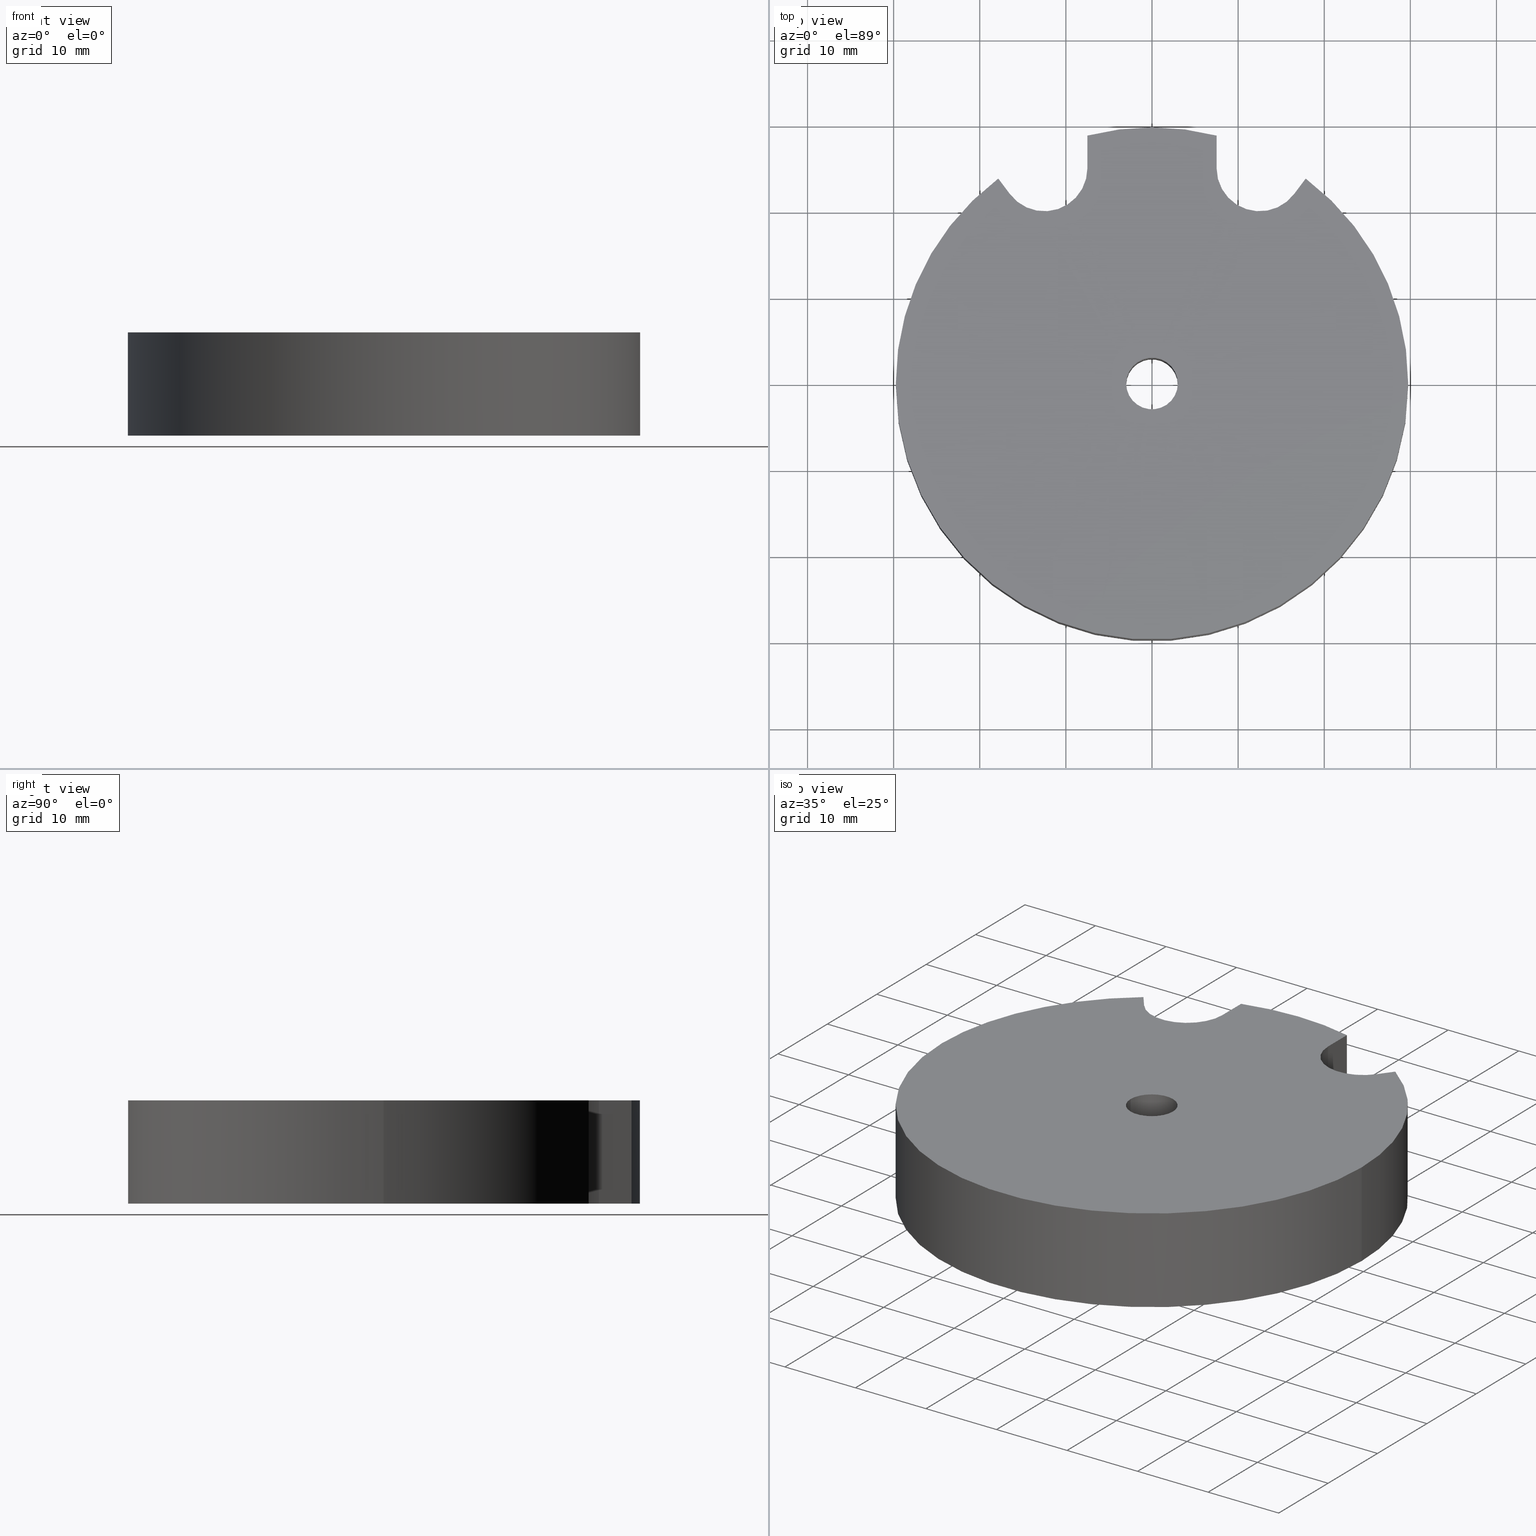
[diagram: canonical four-view strip — front | top / right | iso, engineering-drawing reading convention]
A machine part, canonical four-view strip (front | top / right | iso — engineering-drawing reading convention). The complete STEP part file that produces these views, byte-faithful:
ISO-10303-21;
HEADER;
FILE_DESCRIPTION (( 'STEP AP214' ),
    '1' );
FILE_NAME ('TripodTopRotDisk.STEP',
    '2015-06-11T08:29:34',
    ( '' ),
    ( '' ),
    'SwSTEP 2.0',
    'SolidWorks 2014',
    '' );
FILE_SCHEMA (( 'AUTOMOTIVE_DESIGN' ));
ENDSEC;

DATA;
#1 = EDGE_CURVE ( 'NONE', #295, #324, #377, .T. ) ;
#2 = CARTESIAN_POINT ( 'NONE',  ( 7.500000000000000000, 25.00000000000000000, -6.000000000000000000 ) ) ;
#3 = CARTESIAN_POINT ( 'NONE',  ( 0.0000000000000000000, 0.0000000000000000000, 6.000000000000000000 ) ) ;
#4 = EDGE_CURVE ( 'NONE', #308, #465, #358, .T. ) ;
#5 = DIRECTION ( 'NONE',  ( -1.000000000000000000, 0.0000000000000000000, 0.0000000000000000000 ) ) ;
#6 = DIRECTION ( 'NONE',  ( -0.0000000000000000000, -0.0000000000000000000, -1.000000000000000000 ) ) ;
#7 = DIRECTION ( 'NONE',  ( 1.000000000000000000, 0.0000000000000000000, 0.0000000000000000000 ) ) ;
#8 = EDGE_CURVE ( 'NONE', #142, #270, #392, .T. ) ;
#9 = PRODUCT_CONTEXT ( 'NONE', #67, 'mechanical' ) ;
#10 = DIRECTION ( 'NONE',  ( 0.0000000000000000000, 0.0000000000000000000, 1.000000000000000000 ) ) ;
#11 = ADVANCED_FACE ( 'NONE', ( #318 ), #233, .T. ) ;
#12 =( LENGTH_UNIT ( ) NAMED_UNIT ( * ) SI_UNIT ( .MILLI., .METRE. ) );
#13 = PRODUCT_DEFINITION_CONTEXT ( 'detailed design', #397, 'design' ) ;
#14 = CARTESIAN_POINT ( 'NONE',  ( 0.0000000000000000000, 0.0000000000000000000, -6.000000000000000000 ) ) ;
#15 = CARTESIAN_POINT ( 'NONE',  ( -3.000000000000000400, 0.0000000000000000000, -6.000000000000000000 ) ) ;
#16 = PLANE ( 'NONE',  #357 ) ;
#17 = FILL_AREA_STYLE_COLOUR ( '', #73 ) ;
#18 = DIRECTION ( 'NONE',  ( 0.0000000000000000000, 0.0000000000000000000, 1.000000000000000000 ) ) ;
#19 = PLANE ( 'NONE',  #361 ) ;
#20 = DIRECTION ( 'NONE',  ( -1.000000000000000000, 0.0000000000000000000, 0.0000000000000000000 ) ) ;
#21 = CARTESIAN_POINT ( 'NONE',  ( 16.50000000000000000, 22.00000000000000700, 6.000000000000000000 ) ) ;
#22 = CARTESIAN_POINT ( 'NONE',  ( 12.50000000000000000, 25.00000000000000000, -6.000000000000000000 ) ) ;
#23 = DIRECTION ( 'NONE',  ( 1.000000000000000000, 0.0000000000000000000, 0.0000000000000000000 ) ) ;
#24 = CARTESIAN_POINT ( 'NONE',  ( 16.50000000000000000, 22.00000000000000700, -6.000000000000000000 ) ) ;
#25 = ADVANCED_FACE ( 'NONE', ( #369 ), #32, .F. ) ;
#26 = DIRECTION ( 'NONE',  ( 0.0000000000000000000, 0.0000000000000000000, 1.000000000000000000 ) ) ;
#27 = EDGE_CURVE ( 'NONE', #320, #319, #103, .T. ) ;
#28 = EDGE_CURVE ( 'NONE', #314, #474, #235, .T. ) ;
#29 = EDGE_CURVE ( 'NONE', #485, #287, #231, .T. ) ;
#30 = DIRECTION ( 'NONE',  ( 1.000000000000000000, 0.0000000000000000000, 0.0000000000000000000 ) ) ;
#31 = DIRECTION ( 'NONE',  ( 1.000000000000000000, 0.0000000000000000000, 0.0000000000000000000 ) ) ;
#32 = PLANE ( 'NONE',  #378 ) ;
#33 = DIRECTION ( 'NONE',  ( -0.0000000000000000000, -0.0000000000000000000, -1.000000000000000000 ) ) ;
#34 = CARTESIAN_POINT ( 'NONE',  ( 29.75000000000000400, 3.643324227463376200E-015, 6.000000000000000000 ) ) ;
#35 = CARTESIAN_POINT ( 'NONE',  ( -3.000000000000000400, 0.0000000000000000000, 6.000000000000000000 ) ) ;
#36 = FILL_AREA_STYLE ('',( #370 ) ) ;
#37 =( NAMED_UNIT ( * ) SI_UNIT ( $, .STERADIAN. ) SOLID_ANGLE_UNIT ( ) );
#38 = DIRECTION ( 'NONE',  ( -0.7999999999999998200, -0.6000000000000003100, 0.0000000000000000000 ) ) ;
#39 = CARTESIAN_POINT ( 'NONE',  ( 0.0000000000000000000, 0.0000000000000000000, -6.000000000000000000 ) ) ;
#40 = CARTESIAN_POINT ( 'NONE',  ( 16.50000000000000000, 22.00000000000000700, 6.000000000000000000 ) ) ;
#41 = DIRECTION ( 'NONE',  ( 1.000000000000000000, 0.0000000000000000000, 0.0000000000000000000 ) ) ;
#42 = CARTESIAN_POINT ( 'NONE',  ( 17.84999999999999800, 23.80000000000000400, 6.000000000000000000 ) ) ;
#43 = CARTESIAN_POINT ( 'NONE',  ( -7.500000000000000000, 25.00000000000000000, -6.000000000000000000 ) ) ;
#44 = CIRCLE ( 'NONE', #362, 29.74999999999999600 ) ;
#45 = FACE_OUTER_BOUND ( 'NONE', #280, .T. ) ;
#46 = ADVANCED_FACE ( 'NONE', ( #102, #230 ), #19, .T. ) ;
#47 = VECTOR ( 'NONE', #200, 1000.000000000000000 ) ;
#48 = CARTESIAN_POINT ( 'NONE',  ( -29.75000000000000400, 0.0000000000000000000, -6.000000000000000000 ) ) ;
#49 = DIRECTION ( 'NONE',  ( 0.0000000000000000000, 0.0000000000000000000, 1.000000000000000000 ) ) ;
#50 = CARTESIAN_POINT ( 'NONE',  ( -7.500000000000000000, 25.00000000000000000, 6.000000000000000000 ) ) ;
#51 = CARTESIAN_POINT ( 'NONE',  ( 0.0000000000000000000, 0.0000000000000000000, 6.000000000000000000 ) ) ;
#52 = DIRECTION ( 'NONE',  ( 1.000000000000000000, 0.0000000000000000000, 0.0000000000000000000 ) ) ;
#53 = CARTESIAN_POINT ( 'NONE',  ( 17.84999999999999800, 23.80000000000000400, -6.000000000000000000 ) ) ;
#54 = DIRECTION ( 'NONE',  ( -0.0000000000000000000, -0.0000000000000000000, -1.000000000000000000 ) ) ;
#55 = CARTESIAN_POINT ( 'NONE',  ( 3.000000000000000400, 3.673940397442060400E-016, 6.000000000000000000 ) ) ;
#56 = CARTESIAN_POINT ( 'NONE',  ( -17.84999999999999800, 23.80000000000000400, 6.000000000000000000 ) ) ;
#57 = UNCERTAINTY_MEASURE_WITH_UNIT (LENGTH_MEASURE( 1.000000000000000100E-005 ), #12, 'distance_accuracy_value', 'NONE');
#58 = DIRECTION ( 'NONE',  ( -0.0000000000000000000, -0.0000000000000000000, -1.000000000000000000 ) ) ;
#59 = DIRECTION ( 'NONE',  ( -0.0000000000000000000, -0.0000000000000000000, -1.000000000000000000 ) ) ;
#60 = DIRECTION ( 'NONE',  ( 0.0000000000000000000, 0.0000000000000000000, 1.000000000000000000 ) ) ;
#61 = EDGE_CURVE ( 'NONE', #328, #323, #44, .T. ) ;
#62 = SHAPE_DEFINITION_REPRESENTATION ( #422, #276 ) ;
#63 = DIRECTION ( 'NONE',  ( 0.0000000000000000000, 0.0000000000000000000, 1.000000000000000000 ) ) ;
#64 = CARTESIAN_POINT ( 'NONE',  ( -17.84999999999999800, 23.80000000000000400, 6.000000000000000000 ) ) ;
#65 = CARTESIAN_POINT ( 'NONE',  ( 0.0000000000000000000, 0.0000000000000000000, 6.000000000000000000 ) ) ;
#66 = DIRECTION ( 'NONE',  ( -0.0000000000000000000, -0.0000000000000000000, -1.000000000000000000 ) ) ;
#67 = APPLICATION_CONTEXT ( 'automotive_design' ) ;
#68 = CARTESIAN_POINT ( 'NONE',  ( -17.84999999999999800, 23.80000000000000400, 6.000000000000000000 ) ) ;
#69 = PRESENTATION_STYLE_ASSIGNMENT (( #277 ) ) ;
#70 = CARTESIAN_POINT ( 'NONE',  ( -16.49999999999999600, 22.00000000000000700, 6.000000000000000000 ) ) ;
#71 = ADVANCED_FACE ( 'NONE', ( #45 ), #16, .F. ) ;
#72 = SURFACE_STYLE_FILL_AREA ( #406 ) ;
#73 = COLOUR_RGB ( '',1.000000000000000000, 1.000000000000000000, 1.000000000000000000 ) ;
#74 = UNCERTAINTY_MEASURE_WITH_UNIT (LENGTH_MEASURE( 1.000000000000000100E-005 ), #387, 'distance_accuracy_value', 'NONE');
#75 = EDGE_CURVE ( 'NONE', #293, #295, #224, .T. ) ;
#76 = VECTOR ( 'NONE', #333, 1000.000000000000000 ) ;
#77 = CYLINDRICAL_SURFACE ( 'NONE', #187, 29.75000000000000400 ) ;
#78 = FACE_OUTER_BOUND ( 'NONE', #453, .T. ) ;
#79 = DIRECTION ( 'NONE',  ( -1.000000000000000000, 0.0000000000000000000, 0.0000000000000000000 ) ) ;
#80 = ADVANCED_FACE ( 'NONE', ( #222 ), #220, .F. ) ;
#81 = LINE ( 'NONE', #56, #76 ) ;
#82 = DIRECTION ( 'NONE',  ( -1.000000000000000000, 0.0000000000000000000, 0.0000000000000000000 ) ) ;
#83 = VECTOR ( 'NONE', #338, 1000.000000000000000 ) ;
#84 = CARTESIAN_POINT ( 'NONE',  ( 0.0000000000000000000, 0.0000000000000000000, 6.000000000000000000 ) ) ;
#85 = VECTOR ( 'NONE', #285, 1000.000000000000000 ) ;
#86 = CARTESIAN_POINT ( 'NONE',  ( 12.50000000000000000, 25.00000000000000000, 6.000000000000000000 ) ) ;
#87 = DIRECTION ( 'NONE',  ( 1.000000000000000000, 0.0000000000000000000, 0.0000000000000000000 ) ) ;
#88 = LINE ( 'NONE', #454, #85 ) ;
#89 = DIRECTION ( 'NONE',  ( -0.0000000000000000000, -0.0000000000000000000, -1.000000000000000000 ) ) ;
#90 = LINE ( 'NONE', #50, #83 ) ;
#91 = PLANE ( 'NONE',  #290 ) ;
#92 = CARTESIAN_POINT ( 'NONE',  ( 0.0000000000000000000, 0.0000000000000000000, -6.000000000000000000 ) ) ;
#93 = CIRCLE ( 'NONE', #217, 29.74999999999999600 ) ;
#94 = CYLINDRICAL_SURFACE ( 'NONE', #212, 29.75000000000000400 ) ;
#95 = EDGE_CURVE ( 'NONE', #330, #295, #223, .T. ) ;
#96 = CIRCLE ( 'NONE', #194, 4.999999999999997300 ) ;
#97 = DIRECTION ( 'NONE',  ( -0.0000000000000000000, -1.000000000000000000, -0.0000000000000000000 ) ) ;
#98 = VECTOR ( 'NONE', #383, 1000.000000000000000 ) ;
#99 = EDGE_CURVE ( 'NONE', #324, #328, #226, .T. ) ;
#100 = LINE ( 'NONE', #281, #98 ) ;
#101 = FACE_OUTER_BOUND ( 'NONE', #337, .T. ) ;
#102 = FACE_OUTER_BOUND ( 'NONE', #165, .T. ) ;
#103 = CIRCLE ( 'NONE', #390, 3.000000000000000400 ) ;
#104 = DIRECTION ( 'NONE',  ( -0.6000000000000002000, 0.7999999999999998200, -0.0000000000000000000 ) ) ;
#105 = VECTOR ( 'NONE', #141, 1000.000000000000000 ) ;
#106 = PRODUCT_RELATED_PRODUCT_CATEGORY ( 'part', '', ( #249 ) ) ;
#107 = CARTESIAN_POINT ( 'NONE',  ( 0.0000000000000000000, 0.0000000000000000000, 6.000000000000000000 ) ) ;
#108 = ADVANCED_FACE ( 'NONE', ( #221, #219 ), #254, .F. ) ;
#109 = DIRECTION ( 'NONE',  ( -0.0000000000000000000, -0.0000000000000000000, -1.000000000000000000 ) ) ;
#110 = ORIENTED_EDGE ( 'NONE', *, *, #229, .T. ) ;
#111 = ORIENTED_EDGE ( 'NONE', *, *, #61, .T. ) ;
#112 = PRODUCT_DEFINITION_FORMATION_WITH_SPECIFIED_SOURCE ( 'ANY', '', #249, .NOT_KNOWN. ) ;
#113 = ORIENTED_EDGE ( 'NONE', *, *, #426, .F. ) ;
#114 = ORIENTED_EDGE ( 'NONE', *, *, #460, .T. ) ;
#115 = VECTOR ( 'NONE', #58, 1000.000000000000000 ) ;
#116 = CIRCLE ( 'NONE', #225, 29.75000000000000400 ) ;
#117 = VECTOR ( 'NONE', #189, 1000.000000000000000 ) ;
#118 = LINE ( 'NONE', #444, #117 ) ;
#119 = CIRCLE ( 'NONE', #227, 29.75000000000000400 ) ;
#120 = PRODUCT_DEFINITION ( 'UNKNOWN', '', #112, #13 ) ;
#121 = CIRCLE ( 'NONE', #213, 4.999999999999997300 ) ;
#122 = AXIS2_PLACEMENT_3D ( 'NONE', #433, #346, #479 ) ;
#123 = VECTOR ( 'NONE', #240, 1000.000000000000000 ) ;
#124 = LINE ( 'NONE', #476, #123 ) ;
#125 = VECTOR ( 'NONE', #54, 1000.000000000000000 ) ;
#126 = LINE ( 'NONE', #248, #158 ) ;
#127 = LINE ( 'NONE', #446, #125 ) ;
#128 = EDGE_CURVE ( 'NONE', #270, #314, #215, .T. ) ;
#129 = CIRCLE ( 'NONE', #237, 29.75000000000000400 ) ;
#130 = CYLINDRICAL_SURFACE ( 'NONE', #234, 3.000000000000000400 ) ;
#131 = LINE ( 'NONE', #156, #115 ) ;
#132 = LINE ( 'NONE', #34, #138 ) ;
#133 = DIRECTION ( 'NONE',  ( -0.0000000000000000000, -0.0000000000000000000, -1.000000000000000000 ) ) ;
#134 = CIRCLE ( 'NONE', #243, 29.75000000000000400 ) ;
#135 = ORIENTED_EDGE ( 'NONE', *, *, #468, .T. ) ;
#136 = FACE_OUTER_BOUND ( 'NONE', #291, .T. ) ;
#137 = DIRECTION ( 'NONE',  ( 0.0000000000000000000, 0.0000000000000000000, 1.000000000000000000 ) ) ;
#138 = VECTOR ( 'NONE', #162, 1000.000000000000000 ) ;
#139 =( GEOMETRIC_REPRESENTATION_CONTEXT ( 3 ) GLOBAL_UNCERTAINTY_ASSIGNED_CONTEXT ( ( #393 ) ) GLOBAL_UNIT_ASSIGNED_CONTEXT ( ( #279, #379, #398 ) ) REPRESENTATION_CONTEXT ( 'NONE', 'WORKASPACE' ) );
#140 = ORIENTED_EDGE ( 'NONE', *, *, #407, .F. ) ;
#141 = DIRECTION ( 'NONE',  ( -0.0000000000000000000, -0.0000000000000000000, -1.000000000000000000 ) ) ;
#142 = VERTEX_POINT ( 'NONE', #70 ) ;
#143 = CARTESIAN_POINT ( 'NONE',  ( 12.50000000000000000, 25.00000000000000000, 6.000000000000000000 ) ) ;
#144 = EDGE_CURVE ( 'NONE', #465, #270, #210, .T. ) ;
#145 = DIRECTION ( 'NONE',  ( -0.0000000000000000000, -0.0000000000000000000, -1.000000000000000000 ) ) ;
#146 = CARTESIAN_POINT ( 'NONE',  ( -12.50000000000000000, 25.00000000000000000, 6.000000000000000000 ) ) ;
#147 = VECTOR ( 'NONE', #66, 1000.000000000000000 ) ;
#148 = ORIENTED_EDGE ( 'NONE', *, *, #464, .F. ) ;
#149 = CARTESIAN_POINT ( 'NONE',  ( -17.84999999999999800, 23.80000000000000400, -6.000000000000000000 ) ) ;
#150 = DIRECTION ( 'NONE',  ( 0.0000000000000000000, 0.0000000000000000000, 1.000000000000000000 ) ) ;
#151 = EDGE_LOOP ( 'NONE', ( #384, #262, #265, #481, #431, #214, #467, #300, #480, #427 ) ) ;
#152 = CARTESIAN_POINT ( 'NONE',  ( 0.0000000000000000000, 0.0000000000000000000, -6.000000000000000000 ) ) ;
#153 = CARTESIAN_POINT ( 'NONE',  ( 0.0000000000000000000, 0.0000000000000000000, 6.000000000000000000 ) ) ;
#154 = DIRECTION ( 'NONE',  ( 1.000000000000000000, 0.0000000000000000000, 0.0000000000000000000 ) ) ;
#155 = CIRCLE ( 'NONE', #245, 29.75000000000000400 ) ;
#156 = CARTESIAN_POINT ( 'NONE',  ( -7.500000000000000000, 28.78910384155782900, 6.000000000000000000 ) ) ;
#157 = LINE ( 'NONE', #55, #147 ) ;
#158 = VECTOR ( 'NONE', #59, 1000.000000000000000 ) ;
#159 = FACE_OUTER_BOUND ( 'NONE', #343, .T. ) ;
#160 = LINE ( 'NONE', #68, #186 ) ;
#161 = DIRECTION ( 'NONE',  ( -0.0000000000000000000, -0.0000000000000000000, -1.000000000000000000 ) ) ;
#162 = DIRECTION ( 'NONE',  ( -0.0000000000000000000, -0.0000000000000000000, -1.000000000000000000 ) ) ;
#163 = CIRCLE ( 'NONE', #292, 3.000000000000000400 ) ;
#164 = SURFACE_STYLE_USAGE ( .BOTH. , #375 ) ;
#165 = EDGE_LOOP ( 'NONE', ( #114, #252, #289, #335, #316, #408, #135, #317, #309, #283 ) ) ;
#166 = CARTESIAN_POINT ( 'NONE',  ( 3.000000000000000400, 3.673940397442060400E-016, 6.000000000000000000 ) ) ;
#167 = ORIENTED_EDGE ( 'NONE', *, *, #460, .F. ) ;
#168 = MECHANICAL_DESIGN_GEOMETRIC_PRESENTATION_REPRESENTATION (  '', ( #175 ), #139 ) ;
#169 = FACE_OUTER_BOUND ( 'NONE', #445, .T. ) ;
#170 = CYLINDRICAL_SURFACE ( 'NONE', #247, 29.74999999999999600 ) ;
#171 = PRESENTATION_LAYER_ASSIGNMENT (  '', '', ( #175 ) ) ;
#172 = CARTESIAN_POINT ( 'NONE',  ( 0.0000000000000000000, 0.0000000000000000000, -6.000000000000000000 ) ) ;
#173 = ORIENTED_EDGE ( 'NONE', *, *, #144, .T. ) ;
#174 = ADVANCED_FACE ( 'NONE', ( #203 ), #196, .F. ) ;
#175 = STYLED_ITEM ( 'NONE', ( #69 ), #276 ) ;
#176 = ORIENTED_EDGE ( 'NONE', *, *, #424, .F. ) ;
#177 = ORIENTED_EDGE ( 'NONE', *, *, #409, .T. ) ;
#178 = CYLINDRICAL_SURFACE ( 'NONE', #278, 4.999999999999997300 ) ;
#179 = ORIENTED_EDGE ( 'NONE', *, *, #8, .T. ) ;
#180 = ORIENTED_EDGE ( 'NONE', *, *, #409, .F. ) ;
#181 = ORIENTED_EDGE ( 'NONE', *, *, #470, .F. ) ;
#182 = ORIENTED_EDGE ( 'NONE', *, *, #28, .T. ) ;
#183 = FACE_OUTER_BOUND ( 'NONE', #296, .T. ) ;
#184 = LINE ( 'NONE', #207, #105 ) ;
#185 = CIRCLE ( 'NONE', #266, 3.000000000000000400 ) ;
#186 = VECTOR ( 'NONE', #459, 1000.000000000000000 ) ;
#187 = AXIS2_PLACEMENT_3D ( 'NONE', #153, #6, #251 ) ;
#188 = FACE_OUTER_BOUND ( 'NONE', #322, .T. ) ;
#189 = DIRECTION ( 'NONE',  ( -0.0000000000000000000, -0.0000000000000000000, -1.000000000000000000 ) ) ;
#190 = DIRECTION ( 'NONE',  ( -0.0000000000000000000, -0.0000000000000000000, -1.000000000000000000 ) ) ;
#191 = CARTESIAN_POINT ( 'NONE',  ( 0.0000000000000000000, 0.0000000000000000000, 6.000000000000000000 ) ) ;
#192 = CARTESIAN_POINT ( 'NONE',  ( -16.49999999999999600, 22.00000000000000700, -6.000000000000000000 ) ) ;
#193 = COLOUR_RGB ( '',1.000000000000000000, 1.000000000000000000, 1.000000000000000000 ) ;
#194 = AXIS2_PLACEMENT_3D ( 'NONE', #146, #190, #52 ) ;
#195 = CARTESIAN_POINT ( 'NONE',  ( 0.0000000000000000000, 0.0000000000000000000, 6.000000000000000000 ) ) ;
#196 = CYLINDRICAL_SURFACE ( 'NONE', #321, 3.000000000000000400 ) ;
#197 =( GEOMETRIC_REPRESENTATION_CONTEXT ( 3 ) GLOBAL_UNCERTAINTY_ASSIGNED_CONTEXT ( ( #57 ) ) GLOBAL_UNIT_ASSIGNED_CONTEXT ( ( #12, #232, #376 ) ) REPRESENTATION_CONTEXT ( 'NONE', 'WORKASPACE' ) );
#198 = SURFACE_STYLE_FILL_AREA ( #36 ) ;
#199 = CARTESIAN_POINT ( 'NONE',  ( 7.500000000000000000, 25.00000000000000000, 6.000000000000000000 ) ) ;
#200 = DIRECTION ( 'NONE',  ( -0.6000000000000002000, -0.7999999999999998200, 0.0000000000000000000 ) ) ;
#201 = LINE ( 'NONE', #43, #206 ) ;
#202 = APPLICATION_PROTOCOL_DEFINITION ( 'draft international standard', 'automotive_design', 1998, #67 ) ;
#203 = FACE_OUTER_BOUND ( 'NONE', #209, .T. ) ;
#204 = DIRECTION ( 'NONE',  ( 0.0000000000000000000, 0.0000000000000000000, 1.000000000000000000 ) ) ;
#205 = DIRECTION ( 'NONE',  ( 0.0000000000000000000, 0.0000000000000000000, 1.000000000000000000 ) ) ;
#206 = VECTOR ( 'NONE', #97, 1000.000000000000000 ) ;
#207 = CARTESIAN_POINT ( 'NONE',  ( -3.000000000000000400, 0.0000000000000000000, 6.000000000000000000 ) ) ;
#208 = PRESENTATION_STYLE_ASSIGNMENT (( #164 ) ) ;
#209 = EDGE_LOOP ( 'NONE', ( #180, #469, #364, #253 ) ) ;
#210 = CIRCLE ( 'NONE', #359, 4.999999999999997300 ) ;
#211 = CARTESIAN_POINT ( 'NONE',  ( -7.500000000000000000, 28.78910384155782900, 6.000000000000000000 ) ) ;
#212 = AXIS2_PLACEMENT_3D ( 'NONE', #471, #33, #344 ) ;
#213 = AXIS2_PLACEMENT_3D ( 'NONE', #143, #236, #472 ) ;
#214 = ORIENTED_EDGE ( 'NONE', *, *, #99, .F. ) ;
#215 = LINE ( 'NONE', #149, #216 ) ;
#216 = VECTOR ( 'NONE', #104, 1000.000000000000000 ) ;
#217 = AXIS2_PLACEMENT_3D ( 'NONE', #3, #205, #30 ) ;
#218 = VECTOR ( 'NONE', #250, 1000.000000000000000 ) ;
#219 = FACE_BOUND ( 'NONE', #349, .T. ) ;
#220 = CYLINDRICAL_SURFACE ( 'NONE', #334, 4.999999999999997300 ) ;
#221 = FACE_OUTER_BOUND ( 'NONE', #151, .T. ) ;
#222 = FACE_OUTER_BOUND ( 'NONE', #273, .T. ) ;
#223 = LINE ( 'NONE', #400, #47 ) ;
#224 = LINE ( 'NONE', #40, #228 ) ;
#225 = AXIS2_PLACEMENT_3D ( 'NONE', #403, #150, #87 ) ;
#226 = LINE ( 'NONE', #2, #218 ) ;
#227 = AXIS2_PLACEMENT_3D ( 'NONE', #39, #18, #23 ) ;
#228 = VECTOR ( 'NONE', #161, 1000.000000000000000 ) ;
#229 = EDGE_CURVE ( 'NONE', #323, #465, #201, .T. ) ;
#230 = FACE_BOUND ( 'NONE', #416, .T. ) ;
#231 = CIRCLE ( 'NONE', #363, 3.000000000000000400 ) ;
#232 =( NAMED_UNIT ( * ) PLANE_ANGLE_UNIT ( ) SI_UNIT ( $, .RADIAN. ) );
#233 = CYLINDRICAL_SURFACE ( 'NONE', #380, 29.75000000000000400 ) ;
#234 = AXIS2_PLACEMENT_3D ( 'NONE', #410, #342, #20 ) ;
#235 = CIRCLE ( 'NONE', #373, 29.75000000000000400 ) ;
#236 = DIRECTION ( 'NONE',  ( -0.0000000000000000000, -0.0000000000000000000, -1.000000000000000000 ) ) ;
#237 = AXIS2_PLACEMENT_3D ( 'NONE', #92, #352, #368 ) ;
#238 = VECTOR ( 'NONE', #89, 1000.000000000000000 ) ;
#239 = CARTESIAN_POINT ( 'NONE',  ( 17.84999999999999800, 23.80000000000000400, 6.000000000000000000 ) ) ;
#240 = DIRECTION ( 'NONE',  ( -0.0000000000000000000, -0.0000000000000000000, -1.000000000000000000 ) ) ;
#241 = CARTESIAN_POINT ( 'NONE',  ( -12.50000000000000000, 25.00000000000000000, -6.000000000000000000 ) ) ;
#242 = DIRECTION ( 'NONE',  ( 1.000000000000000000, 0.0000000000000000000, 0.0000000000000000000 ) ) ;
#243 = AXIS2_PLACEMENT_3D ( 'NONE', #336, #49, #242 ) ;
#244 = CARTESIAN_POINT ( 'NONE',  ( -16.49999999999999600, 22.00000000000000700, 6.000000000000000000 ) ) ;
#245 = AXIS2_PLACEMENT_3D ( 'NONE', #191, #60, #449 ) ;
#246 = ORIENTED_EDGE ( 'NONE', *, *, #407, .T. ) ;
#247 = AXIS2_PLACEMENT_3D ( 'NONE', #443, #109, #5 ) ;
#248 = CARTESIAN_POINT ( 'NONE',  ( 7.500000000000000000, 25.00000000000000000, 6.000000000000000000 ) ) ;
#249 = PRODUCT ( 'TripodTopRotDisk', 'TripodTopRotDisk', '', ( #9 ) ) ;
#250 = DIRECTION ( 'NONE',  ( 0.0000000000000000000, 1.000000000000000000, 0.0000000000000000000 ) ) ;
#251 = DIRECTION ( 'NONE',  ( -1.000000000000000000, 0.0000000000000000000, 0.0000000000000000000 ) ) ;
#252 = ORIENTED_EDGE ( 'NONE', *, *, #430, .T. ) ;
#253 = ORIENTED_EDGE ( 'NONE', *, *, #27, .F. ) ;
#254 = PLANE ( 'NONE',  #331 ) ;
#255 = ORIENTED_EDGE ( 'NONE', *, *, #466, .F. ) ;
#256 = ORIENTED_EDGE ( 'NONE', *, *, #128, .T. ) ;
#257 = DIRECTION ( 'NONE',  ( 0.0000000000000000000, 0.0000000000000000000, 1.000000000000000000 ) ) ;
#258 = MANIFOLD_SOLID_BREP ( 'Boss-Extrude1', #306 ) ;
#259 = ORIENTED_EDGE ( 'NONE', *, *, #468, .F. ) ;
#260 = DIRECTION ( 'NONE',  ( 0.0000000000000000000, 0.0000000000000000000, 1.000000000000000000 ) ) ;
#261 = ORIENTED_EDGE ( 'NONE', *, *, #27, .T. ) ;
#262 = ORIENTED_EDGE ( 'NONE', *, *, #128, .F. ) ;
#263 = ADVANCED_FACE ( 'NONE', ( #188 ), #91, .F. ) ;
#264 = ORIENTED_EDGE ( 'NONE', *, *, #399, .T. ) ;
#265 = ORIENTED_EDGE ( 'NONE', *, *, #144, .F. ) ;
#266 = AXIS2_PLACEMENT_3D ( 'NONE', #172, #260, #448 ) ;
#267 = ORIENTED_EDGE ( 'NONE', *, *, #99, .T. ) ;
#268 = ORIENTED_EDGE ( 'NONE', *, *, #95, .T. ) ;
#269 = ORIENTED_EDGE ( 'NONE', *, *, #426, .T. ) ;
#270 = VERTEX_POINT ( 'NONE', #192 ) ;
#271 = EDGE_LOOP ( 'NONE', ( #110, #374, #181, #288 ) ) ;
#272 = ORIENTED_EDGE ( 'NONE', *, *, #441, .T. ) ;
#273 = EDGE_LOOP ( 'NONE', ( #458, #367, #148, #434 ) ) ;
#274 = AXIS2_PLACEMENT_3D ( 'NONE', #297, #38, #389 ) ;
#275 = VERTEX_POINT ( 'NONE', #239 ) ;
#276 = ADVANCED_BREP_SHAPE_REPRESENTATION ( 'TripodTopRotDisk', ( #258, #122 ), #197 ) ;
#277 = SURFACE_STYLE_USAGE ( .BOTH. , #486 ) ;
#278 = AXIS2_PLACEMENT_3D ( 'NONE', #451, #478, #82 ) ;
#279 =( LENGTH_UNIT ( ) NAMED_UNIT ( * ) SI_UNIT ( .MILLI., .METRE. ) );
#280 = EDGE_LOOP ( 'NONE', ( #268, #298, #455, #423 ) ) ;
#281 = CARTESIAN_POINT ( 'NONE',  ( 17.84999999999999800, 23.80000000000000400, 6.000000000000000000 ) ) ;
#282 = VERTEX_POINT ( 'NONE', #310 ) ;
#283 = ORIENTED_EDGE ( 'NONE', *, *, #477, .T. ) ;
#284 = DIRECTION ( 'NONE',  ( 0.0000000000000000000, 0.0000000000000000000, -1.000000000000000000 ) ) ;
#285 = DIRECTION ( 'NONE',  ( 0.0000000000000000000, 1.000000000000000000, 0.0000000000000000000 ) ) ;
#286 = CARTESIAN_POINT ( 'NONE',  ( -29.75000000000000400, 0.0000000000000000000, 6.000000000000000000 ) ) ;
#287 = VERTEX_POINT ( 'NONE', #35 ) ;
#288 = ORIENTED_EDGE ( 'NONE', *, *, #450, .T. ) ;
#289 = ORIENTED_EDGE ( 'NONE', *, *, #418, .T. ) ;
#290 = AXIS2_PLACEMENT_3D ( 'NONE', #438, #404, #339 ) ;
#291 = EDGE_LOOP ( 'NONE', ( #246, #177, #463, #355 ) ) ;
#292 = AXIS2_PLACEMENT_3D ( 'NONE', #51, #385, #154 ) ;
#293 = VERTEX_POINT ( 'NONE', #21 ) ;
#294 = CARTESIAN_POINT ( 'NONE',  ( 7.500000000000000000, 25.00000000000000000, -6.000000000000000000 ) ) ;
#295 = VERTEX_POINT ( 'NONE', #24 ) ;
#296 = EDGE_LOOP ( 'NONE', ( #173, #457, #414, #327 ) ) ;
#297 = CARTESIAN_POINT ( 'NONE',  ( -17.84999999999999800, 23.80000000000000400, 6.000000000000000000 ) ) ;
#298 = ORIENTED_EDGE ( 'NONE', *, *, #75, .F. ) ;
#299 = DIRECTION ( 'NONE',  ( 1.000000000000000000, 0.0000000000000000000, 0.0000000000000000000 ) ) ;
#300 = ORIENTED_EDGE ( 'NONE', *, *, #95, .F. ) ;
#301 = VERTEX_POINT ( 'NONE', #286 ) ;
#302 =( GEOMETRIC_REPRESENTATION_CONTEXT ( 3 ) GLOBAL_UNCERTAINTY_ASSIGNED_CONTEXT ( ( #74 ) ) GLOBAL_UNIT_ASSIGNED_CONTEXT ( ( #387, #348, #37 ) ) REPRESENTATION_CONTEXT ( 'NONE', 'WORKASPACE' ) );
#303 = DIRECTION ( 'NONE',  ( -0.0000000000000000000, -0.0000000000000000000, -1.000000000000000000 ) ) ;
#304 = CARTESIAN_POINT ( 'NONE',  ( -7.500000000000003600, 25.00000000000000000, 6.000000000000000000 ) ) ;
#305 = ORIENTED_EDGE ( 'NONE', *, *, #429, .F. ) ;
#306 = CLOSED_SHELL ( 'NONE', ( #420, #11, #473, #46, #108, #461, #71, #80, #263, #360, #25, #313, #332, #174 ) ) ;
#307 = DIRECTION ( 'NONE',  ( -0.0000000000000000000, -0.0000000000000000000, -1.000000000000000000 ) ) ;
#308 = VERTEX_POINT ( 'NONE', #304 ) ;
#309 = ORIENTED_EDGE ( 'NONE', *, *, #475, .T. ) ;
#310 = CARTESIAN_POINT ( 'NONE',  ( 29.75000000000000400, 3.643324227463376200E-015, -6.000000000000000000 ) ) ;
#311 = MECHANICAL_DESIGN_GEOMETRIC_PRESENTATION_REPRESENTATION (  '', ( #325 ), #302 ) ;
#312 = ORIENTED_EDGE ( 'NONE', *, *, #418, .F. ) ;
#313 = ADVANCED_FACE ( 'NONE', ( #183 ), #178, .F. ) ;
#314 = VERTEX_POINT ( 'NONE', #402 ) ;
#315 = ORIENTED_EDGE ( 'NONE', *, *, #396, .T. ) ;
#316 = ORIENTED_EDGE ( 'NONE', *, *, #464, .T. ) ;
#317 = ORIENTED_EDGE ( 'NONE', *, *, #470, .T. ) ;
#318 = FACE_OUTER_BOUND ( 'NONE', #437, .T. ) ;
#319 = VERTEX_POINT ( 'NONE', #15 ) ;
#320 = VERTEX_POINT ( 'NONE', #413 ) ;
#321 = AXIS2_PLACEMENT_3D ( 'NONE', #84, #307, #371 ) ;
#322 = EDGE_LOOP ( 'NONE', ( #267, #113, #255, #264 ) ) ;
#323 = VERTEX_POINT ( 'NONE', #456 ) ;
#324 = VERTEX_POINT ( 'NONE', #294 ) ;
#325 = STYLED_ITEM ( 'NONE', ( #208 ), #258 ) ;
#326 = PRESENTATION_LAYER_ASSIGNMENT (  '', '', ( #325 ) ) ;
#327 = ORIENTED_EDGE ( 'NONE', *, *, #4, .T. ) ;
#328 = VERTEX_POINT ( 'NONE', #356 ) ;
#329 = VERTEX_POINT ( 'NONE', #211 ) ;
#330 = VERTEX_POINT ( 'NONE', #53 ) ;
#331 = AXIS2_PLACEMENT_3D ( 'NONE', #14, #204, #442 ) ;
#332 = ADVANCED_FACE ( 'NONE', ( #169 ), #341, .F. ) ;
#333 = DIRECTION ( 'NONE',  ( -0.6000000000000002000, 0.7999999999999998200, -0.0000000000000000000 ) ) ;
#334 = AXIS2_PLACEMENT_3D ( 'NONE', #86, #415, #79 ) ;
#335 = ORIENTED_EDGE ( 'NONE', *, *, #462, .T. ) ;
#336 = CARTESIAN_POINT ( 'NONE',  ( 0.0000000000000000000, 0.0000000000000000000, 6.000000000000000000 ) ) ;
#337 = EDGE_LOOP ( 'NONE', ( #482, #167, #354, #182 ) ) ;
#338 = DIRECTION ( 'NONE',  ( -0.0000000000000000000, -1.000000000000000000, -0.0000000000000000000 ) ) ;
#339 = DIRECTION ( 'NONE',  ( 0.0000000000000000000, 0.0000000000000000000, 1.000000000000000000 ) ) ;
#340 = APPLICATION_PROTOCOL_DEFINITION ( 'draft international standard', 'automotive_design', 1998, #397 ) ;
#341 = PLANE ( 'NONE',  #274 ) ;
#342 = DIRECTION ( 'NONE',  ( -0.0000000000000000000, -0.0000000000000000000, -1.000000000000000000 ) ) ;
#343 = EDGE_LOOP ( 'NONE', ( #111, #365, #259, #269 ) ) ;
#344 = DIRECTION ( 'NONE',  ( -1.000000000000000000, 0.0000000000000000000, 0.0000000000000000000 ) ) ;
#345 = DIRECTION ( 'NONE',  ( 1.000000000000000000, 0.0000000000000000000, 0.0000000000000000000 ) ) ;
#346 = DIRECTION ( 'NONE',  ( 0.0000000000000000000, 0.0000000000000000000, 1.000000000000000000 ) ) ;
#347 = VERTEX_POINT ( 'NONE', #199 ) ;
#348 =( NAMED_UNIT ( * ) PLANE_ANGLE_UNIT ( ) SI_UNIT ( $, .RADIAN. ) );
#349 = EDGE_LOOP ( 'NONE', ( #315, #261 ) ) ;
#350 = DIRECTION ( 'NONE',  ( 1.000000000000000000, 0.0000000000000000000, 0.0000000000000000000 ) ) ;
#351 = VECTOR ( 'NONE', #419, 1000.000000000000000 ) ;
#352 = DIRECTION ( 'NONE',  ( 0.0000000000000000000, 0.0000000000000000000, 1.000000000000000000 ) ) ;
#353 = VERTEX_POINT ( 'NONE', #391 ) ;
#354 = ORIENTED_EDGE ( 'NONE', *, *, #386, .T. ) ;
#355 = ORIENTED_EDGE ( 'NONE', *, *, #395, .F. ) ;
#356 = CARTESIAN_POINT ( 'NONE',  ( 7.500000000000000900, 28.78910384155782900, -6.000000000000000000 ) ) ;
#357 = AXIS2_PLACEMENT_3D ( 'NONE', #42, #381, #483 ) ;
#358 = LINE ( 'NONE', #412, #351 ) ;
#359 = AXIS2_PLACEMENT_3D ( 'NONE', #241, #145, #345 ) ;
#360 = ADVANCED_FACE ( 'NONE', ( #159 ), #170, .T. ) ;
#361 = AXIS2_PLACEMENT_3D ( 'NONE', #65, #63, #411 ) ;
#362 = AXIS2_PLACEMENT_3D ( 'NONE', #417, #257, #299 ) ;
#363 = AXIS2_PLACEMENT_3D ( 'NONE', #107, #10, #41 ) ;
#364 = ORIENTED_EDGE ( 'NONE', *, *, #395, .T. ) ;
#365 = ORIENTED_EDGE ( 'NONE', *, *, #450, .F. ) ;
#366 = ORIENTED_EDGE ( 'NONE', *, *, #29, .F. ) ;
#367 = ORIENTED_EDGE ( 'NONE', *, *, #399, .F. ) ;
#368 = DIRECTION ( 'NONE',  ( 1.000000000000000000, 0.0000000000000000000, 0.0000000000000000000 ) ) ;
#369 = FACE_OUTER_BOUND ( 'NONE', #271, .T. ) ;
#370 = FILL_AREA_STYLE_COLOUR ( '', #193 ) ;
#371 = DIRECTION ( 'NONE',  ( -1.000000000000000000, 0.0000000000000000000, 0.0000000000000000000 ) ) ;
#372 = ORIENTED_EDGE ( 'NONE', *, *, #386, .F. ) ;
#373 = AXIS2_PLACEMENT_3D ( 'NONE', #152, #26, #7 ) ;
#374 = ORIENTED_EDGE ( 'NONE', *, *, #4, .F. ) ;
#375 = SURFACE_SIDE_STYLE ('',( #198 ) ) ;
#376 =( NAMED_UNIT ( * ) SI_UNIT ( $, .STERADIAN. ) SOLID_ANGLE_UNIT ( ) );
#377 = CIRCLE ( 'NONE', #394, 4.999999999999997300 ) ;
#378 = AXIS2_PLACEMENT_3D ( 'NONE', #432, #31, #284 ) ;
#379 =( NAMED_UNIT ( * ) PLANE_ANGLE_UNIT ( ) SI_UNIT ( $, .RADIAN. ) );
#380 = AXIS2_PLACEMENT_3D ( 'NONE', #195, #133, #382 ) ;
#381 = DIRECTION ( 'NONE',  ( 0.7999999999999998200, -0.6000000000000003100, 0.0000000000000000000 ) ) ;
#382 = DIRECTION ( 'NONE',  ( -1.000000000000000000, 0.0000000000000000000, 0.0000000000000000000 ) ) ;
#383 = DIRECTION ( 'NONE',  ( -0.6000000000000002000, -0.7999999999999998200, 0.0000000000000000000 ) ) ;
#384 = ORIENTED_EDGE ( 'NONE', *, *, #28, .F. ) ;
#385 = DIRECTION ( 'NONE',  ( 0.0000000000000000000, 0.0000000000000000000, 1.000000000000000000 ) ) ;
#386 = EDGE_CURVE ( 'NONE', #425, #314, #160, .T. ) ;
#387 =( LENGTH_UNIT ( ) NAMED_UNIT ( * ) SI_UNIT ( .MILLI., .METRE. ) );
#388 = CARTESIAN_POINT ( 'NONE',  ( -7.500000000000003600, 25.00000000000000000, -6.000000000000000000 ) ) ;
#389 = DIRECTION ( 'NONE',  ( 0.6000000000000003100, -0.7999999999999998200, 0.0000000000000000000 ) ) ;
#390 = AXIS2_PLACEMENT_3D ( 'NONE', #436, #137, #350 ) ;
#391 = CARTESIAN_POINT ( 'NONE',  ( 29.75000000000000400, 3.643324227463376200E-015, 6.000000000000000000 ) ) ;
#392 = LINE ( 'NONE', #244, #238 ) ;
#393 = UNCERTAINTY_MEASURE_WITH_UNIT (LENGTH_MEASURE( 1.000000000000000100E-005 ), #279, 'distance_accuracy_value', 'NONE');
#394 = AXIS2_PLACEMENT_3D ( 'NONE', #22, #303, #484 ) ;
#395 = EDGE_CURVE ( 'NONE', #287, #319, #184, .T. ) ;
#396 = EDGE_CURVE ( 'NONE', #319, #320, #185, .T. ) ;
#397 = APPLICATION_CONTEXT ( 'automotive_design' ) ;
#398 =( NAMED_UNIT ( * ) SI_UNIT ( $, .STERADIAN. ) SOLID_ANGLE_UNIT ( ) );
#399 = EDGE_CURVE ( 'NONE', #347, #324, #126, .T. ) ;
#400 = CARTESIAN_POINT ( 'NONE',  ( 17.84999999999999800, 23.80000000000000400, -6.000000000000000000 ) ) ;
#401 = ORIENTED_EDGE ( 'NONE', *, *, #424, .T. ) ;
#402 = CARTESIAN_POINT ( 'NONE',  ( -17.84999999999999800, 23.80000000000000400, -6.000000000000000000 ) ) ;
#403 = CARTESIAN_POINT ( 'NONE',  ( 0.0000000000000000000, 0.0000000000000000000, 6.000000000000000000 ) ) ;
#404 = DIRECTION ( 'NONE',  ( -1.000000000000000000, 0.0000000000000000000, 0.0000000000000000000 ) ) ;
#405 = ORIENTED_EDGE ( 'NONE', *, *, #428, .T. ) ;
#406 = FILL_AREA_STYLE ('',( #17 ) ) ;
#407 = EDGE_CURVE ( 'NONE', #287, #485, #163, .T. ) ;
#408 = ORIENTED_EDGE ( 'NONE', *, *, #466, .T. ) ;
#409 = EDGE_CURVE ( 'NONE', #485, #320, #157, .T. ) ;
#410 = CARTESIAN_POINT ( 'NONE',  ( 0.0000000000000000000, 0.0000000000000000000, 6.000000000000000000 ) ) ;
#411 = DIRECTION ( 'NONE',  ( 1.000000000000000000, 0.0000000000000000000, -0.0000000000000000000 ) ) ;
#412 = CARTESIAN_POINT ( 'NONE',  ( -7.500000000000003600, 25.00000000000000000, 6.000000000000000000 ) ) ;
#413 = CARTESIAN_POINT ( 'NONE',  ( 3.000000000000000400, 3.673940397442060400E-016, -6.000000000000000000 ) ) ;
#414 = ORIENTED_EDGE ( 'NONE', *, *, #475, .F. ) ;
#415 = DIRECTION ( 'NONE',  ( -0.0000000000000000000, -0.0000000000000000000, -1.000000000000000000 ) ) ;
#416 = EDGE_LOOP ( 'NONE', ( #140, #366 ) ) ;
#417 = CARTESIAN_POINT ( 'NONE',  ( 0.0000000000000000000, 0.0000000000000000000, -6.000000000000000000 ) ) ;
#418 = EDGE_CURVE ( 'NONE', #353, #275, #155, .T. ) ;
#419 = DIRECTION ( 'NONE',  ( -0.0000000000000000000, -0.0000000000000000000, -1.000000000000000000 ) ) ;
#420 = ADVANCED_FACE ( 'NONE', ( #136 ), #130, .F. ) ;
#421 = ORIENTED_EDGE ( 'NONE', *, *, #430, .F. ) ;
#422 = PRODUCT_DEFINITION_SHAPE ( 'NONE', 'NONE',  #120 ) ;
#423 = ORIENTED_EDGE ( 'NONE', *, *, #429, .T. ) ;
#424 = EDGE_CURVE ( 'NONE', #353, #282, #132, .T. ) ;
#425 = VERTEX_POINT ( 'NONE', #64 ) ;
#426 = EDGE_CURVE ( 'NONE', #435, #328, #127, .T. ) ;
#427 = ORIENTED_EDGE ( 'NONE', *, *, #441, .F. ) ;
#428 = EDGE_CURVE ( 'NONE', #282, #330, #129, .T. ) ;
#429 = EDGE_CURVE ( 'NONE', #275, #330, #124, .T. ) ;
#430 = EDGE_CURVE ( 'NONE', #301, #353, #134, .T. ) ;
#431 = ORIENTED_EDGE ( 'NONE', *, *, #61, .F. ) ;
#432 = CARTESIAN_POINT ( 'NONE',  ( -7.500000000000000000, 25.00000000000000000, 6.000000000000000000 ) ) ;
#433 = CARTESIAN_POINT ( 'NONE',  ( 0.0000000000000000000, 0.0000000000000000000, 0.0000000000000000000 ) ) ;
#434 = ORIENTED_EDGE ( 'NONE', *, *, #75, .T. ) ;
#435 = VERTEX_POINT ( 'NONE', #439 ) ;
#436 = CARTESIAN_POINT ( 'NONE',  ( 0.0000000000000000000, 0.0000000000000000000, -6.000000000000000000 ) ) ;
#437 = EDGE_LOOP ( 'NONE', ( #312, #401, #405, #305 ) ) ;
#438 = CARTESIAN_POINT ( 'NONE',  ( 7.500000000000000000, 25.00000000000000000, 6.000000000000000000 ) ) ;
#439 = CARTESIAN_POINT ( 'NONE',  ( 7.500000000000000900, 28.78910384155782900, 6.000000000000000000 ) ) ;
#440 = EDGE_CURVE ( 'NONE', #301, #474, #118, .T. ) ;
#441 = EDGE_CURVE ( 'NONE', #474, #282, #119, .T. ) ;
#442 = DIRECTION ( 'NONE',  ( 1.000000000000000000, 0.0000000000000000000, -0.0000000000000000000 ) ) ;
#443 = CARTESIAN_POINT ( 'NONE',  ( 0.0000000000000000000, 0.0000000000000000000, 6.000000000000000000 ) ) ;
#444 = CARTESIAN_POINT ( 'NONE',  ( -29.75000000000000400, 0.0000000000000000000, 6.000000000000000000 ) ) ;
#445 = EDGE_LOOP ( 'NONE', ( #256, #372, #447, #179 ) ) ;
#446 = CARTESIAN_POINT ( 'NONE',  ( 7.500000000000000900, 28.78910384155782900, 6.000000000000000000 ) ) ;
#447 = ORIENTED_EDGE ( 'NONE', *, *, #477, .F. ) ;
#448 = DIRECTION ( 'NONE',  ( 1.000000000000000000, 0.0000000000000000000, 0.0000000000000000000 ) ) ;
#449 = DIRECTION ( 'NONE',  ( 1.000000000000000000, 0.0000000000000000000, 0.0000000000000000000 ) ) ;
#450 = EDGE_CURVE ( 'NONE', #329, #323, #131, .T. ) ;
#451 = CARTESIAN_POINT ( 'NONE',  ( -12.50000000000000000, 25.00000000000000000, 6.000000000000000000 ) ) ;
#452 = ORIENTED_EDGE ( 'NONE', *, *, #440, .T. ) ;
#453 = EDGE_LOOP ( 'NONE', ( #176, #421, #452, #272 ) ) ;
#454 = CARTESIAN_POINT ( 'NONE',  ( 7.500000000000000000, 25.00000000000000000, 6.000000000000000000 ) ) ;
#455 = ORIENTED_EDGE ( 'NONE', *, *, #462, .F. ) ;
#456 = CARTESIAN_POINT ( 'NONE',  ( -7.500000000000000000, 28.78910384155782900, -6.000000000000000000 ) ) ;
#457 = ORIENTED_EDGE ( 'NONE', *, *, #8, .F. ) ;
#458 = ORIENTED_EDGE ( 'NONE', *, *, #1, .T. ) ;
#459 = DIRECTION ( 'NONE',  ( -0.0000000000000000000, -0.0000000000000000000, -1.000000000000000000 ) ) ;
#460 = EDGE_CURVE ( 'NONE', #425, #301, #116, .T. ) ;
#461 = ADVANCED_FACE ( 'NONE', ( #101 ), #94, .T. ) ;
#462 = EDGE_CURVE ( 'NONE', #275, #293, #100, .T. ) ;
#463 = ORIENTED_EDGE ( 'NONE', *, *, #396, .F. ) ;
#464 = EDGE_CURVE ( 'NONE', #293, #347, #121, .T. ) ;
#465 = VERTEX_POINT ( 'NONE', #388 ) ;
#466 = EDGE_CURVE ( 'NONE', #347, #435, #88, .T. ) ;
#467 = ORIENTED_EDGE ( 'NONE', *, *, #1, .F. ) ;
#468 = EDGE_CURVE ( 'NONE', #435, #329, #93, .T. ) ;
#469 = ORIENTED_EDGE ( 'NONE', *, *, #29, .T. ) ;
#470 = EDGE_CURVE ( 'NONE', #329, #308, #90, .T. ) ;
#471 = CARTESIAN_POINT ( 'NONE',  ( 0.0000000000000000000, 0.0000000000000000000, 6.000000000000000000 ) ) ;
#472 = DIRECTION ( 'NONE',  ( -1.000000000000000000, 0.0000000000000000000, 0.0000000000000000000 ) ) ;
#473 = ADVANCED_FACE ( 'NONE', ( #78 ), #77, .T. ) ;
#474 = VERTEX_POINT ( 'NONE', #48 ) ;
#475 = EDGE_CURVE ( 'NONE', #308, #142, #96, .T. ) ;
#476 = CARTESIAN_POINT ( 'NONE',  ( 17.84999999999999800, 23.80000000000000400, 6.000000000000000000 ) ) ;
#477 = EDGE_CURVE ( 'NONE', #142, #425, #81, .T. ) ;
#478 = DIRECTION ( 'NONE',  ( -0.0000000000000000000, -0.0000000000000000000, -1.000000000000000000 ) ) ;
#479 = DIRECTION ( 'NONE',  ( 1.000000000000000000, 0.0000000000000000000, 0.0000000000000000000 ) ) ;
#480 = ORIENTED_EDGE ( 'NONE', *, *, #428, .F. ) ;
#481 = ORIENTED_EDGE ( 'NONE', *, *, #229, .F. ) ;
#482 = ORIENTED_EDGE ( 'NONE', *, *, #440, .F. ) ;
#483 = DIRECTION ( 'NONE',  ( 0.6000000000000003100, 0.7999999999999998200, 0.0000000000000000000 ) ) ;
#484 = DIRECTION ( 'NONE',  ( -1.000000000000000000, 0.0000000000000000000, 0.0000000000000000000 ) ) ;
#485 = VERTEX_POINT ( 'NONE', #166 ) ;
#486 = SURFACE_SIDE_STYLE ('',( #72 ) ) ;
ENDSEC;
END-ISO-10303-21;
